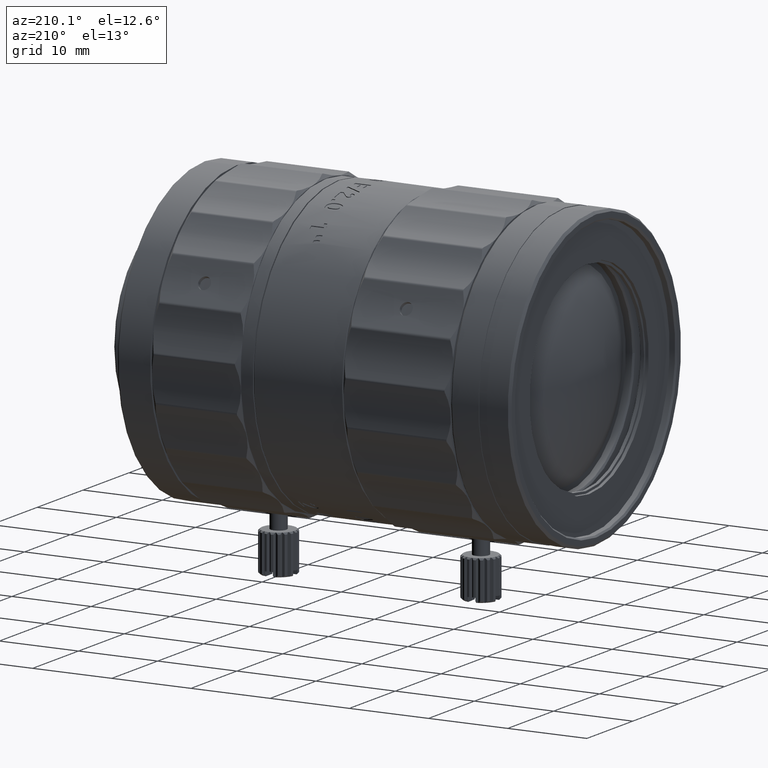
[diagram: clean part render]
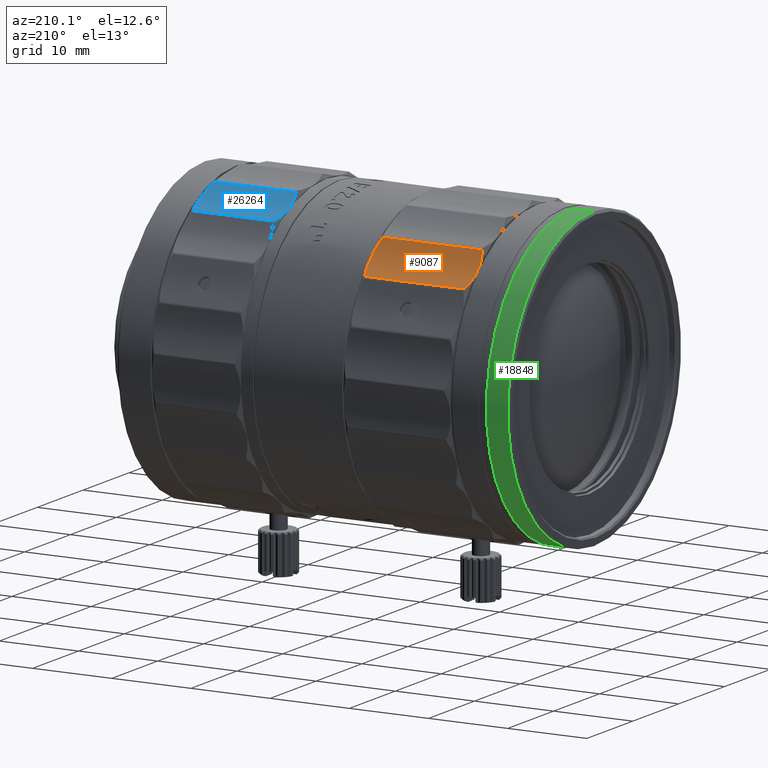
[diagram: same view with three faces highlighted in distinct colors, each labeled with its STEP entity id]
A machine part, auxiliary view with three faces highlighted in distinct colors.
Their STEP definitions:

[orange] entity #9087 — the highlighted cylindrical surface (partial cylindrical patch) has radius 12.5 mm, axis along (1, 0, 0).
#60 = EDGE_CURVE ( 'NONE', #868, #32523, #30309, .T. ) ;
#868 = VERTEX_POINT ( 'NONE', #10416 ) ;
#1176 = VERTEX_POINT ( 'NONE', #35260 ) ;
#1631 = CARTESIAN_POINT ( 'NONE',  ( -11.53163445357601269, 10.89568051414707917, 15.66449177079387844 ) ) ;
#1979 = ORIENTED_EDGE ( 'NONE', *, *, #3864, .F. ) ;
#2832 = EDGE_CURVE ( 'NONE', #9392, #33199, #10520, .T. ) ;
#3864 = EDGE_CURVE ( 'NONE', #9392, #24935, #35029, .T. ) ;
#5397 = FACE_OUTER_BOUND ( 'NONE', #8705, .T. ) ;
#5431 = ORIENTED_EDGE ( 'NONE', *, *, #32544, .F. ) ;
#7262 = AXIS2_PLACEMENT_3D ( 'NONE', #35252, #20626, #17005 ) ;
#7685 = CARTESIAN_POINT ( 'NONE',  ( -24.10923639980315514, 14.80645545024111165, 12.03582291759440182 ) ) ;
#8067 = DIRECTION ( 'NONE',  ( 1.000000000000000000, 0.000000000000000000, 0.000000000000000000 ) ) ;
#8121 = CARTESIAN_POINT ( 'NONE',  ( -24.10923639980437017, 10.89568051414770444, 15.66449177079297783 ) ) ;
#8151 = B_SPLINE_CURVE_WITH_KNOTS ( 'NONE', 3,
 ( #31873, #34369, #34730, #14576 ),
 .UNSPECIFIED., .F., .F.,
 ( 4, 4 ),
 ( 1.295472688045270238E-14, 0.001922655017916426266 ),
 .UNSPECIFIED. ) ;
#8466 = ORIENTED_EDGE ( 'NONE', *, *, #2832, .T. ) ;
#8705 = EDGE_LOOP ( 'NONE', ( #1979, #8466, #10572, #5431, #37404, #29424, #18927, #14153 ) ) ;
#9087 = ADVANCED_FACE ( 'NONE', ( #5397 ), #31083, .F. ) ;
#9392 = VERTEX_POINT ( 'NONE', #32588 ) ;
#9659 = EDGE_CURVE ( 'NONE', #1176, #868, #27371, .T. ) ;
#10416 = CARTESIAN_POINT ( 'NONE',  ( -11.10043542669171224, 13.26851784864276773, 13.10606478315763290 ) ) ;
#10520 = CIRCLE ( 'NONE', #23211, 12.50000000000000000 ) ;
#10572 = ORIENTED_EDGE ( 'NONE', *, *, #25276, .F. ) ;
#10902 = CARTESIAN_POINT ( 'NONE',  ( -24.47071524230154083, 13.76760073791130345, 12.70000782605717404 ) ) ;
#11163 = CARTESIAN_POINT ( 'NONE',  ( -24.32160816121692193, 11.24427671278445651, 15.16332641089076461 ) ) ;
#11396 = CARTESIAN_POINT ( 'NONE',  ( -11.17015561107907118, 13.76760073791565375, 12.70000782605363199 ) ) ;
#12043 = VERTEX_POINT ( 'NONE', #1631 ) ;
#13615 = LINE ( 'NONE', #25009, #35944 ) ;
#13764 = LINE ( 'NONE', #37139, #35516 ) ;
#13816 = CARTESIAN_POINT ( 'NONE',  ( -24.54043542668787836, 12.07785998728260424, 14.21083382943052698 ) ) ;
#14153 = ORIENTED_EDGE ( 'NONE', *, *, #24534, .F. ) ;
#14225 = CARTESIAN_POINT ( 'NONE',  ( -11.31926269216331882, 14.28064082378066502, 12.34599223631151155 ) ) ;
#14495 = CARTESIAN_POINT ( 'NONE',  ( -24.54043542668999933, 21.15738497753000047, 22.80223801917000159 ) ) ;
#14576 = CARTESIAN_POINT ( 'NONE',  ( -11.53163445357601269, 10.89568051414707917, 15.66449177079387844 ) ) ;
#16006 = CARTESIAN_POINT ( 'NONE',  ( -24.10923639980315514, 14.80645545024111165, 12.03582291759440182 ) ) ;
#16952 = DIRECTION ( 'NONE',  ( -1.000000000000000000, -0.000000000000000000, -0.000000000000000000 ) ) ;
#17005 = DIRECTION ( 'NONE',  ( 0.000000000000000000, 0.000000000000000000, -1.000000000000000000 ) ) ;
#17898 = VERTEX_POINT ( 'NONE', #25364 ) ;
#17916 = CARTESIAN_POINT ( 'NONE',  ( -24.54043542668787836, 12.07785998728260424, 14.21083382943052698 ) ) ;
#18927 = ORIENTED_EDGE ( 'NONE', *, *, #9659, .F. ) ;
#19043 = EDGE_CURVE ( 'NONE', #32523, #12043, #8151, .T. ) ;
#19681 = DIRECTION ( 'NONE',  ( 1.000000000000000000, 0.000000000000000000, 0.000000000000000000 ) ) ;
#20626 = DIRECTION ( 'NONE',  ( -1.000000000000000000, -0.000000000000000000, -0.000000000000000000 ) ) ;
#21981 = CARTESIAN_POINT ( 'NONE',  ( -11.10043542669220962, 12.07785998728108723, 14.21083382943212570 ) ) ;
#22148 = CARTESIAN_POINT ( 'NONE',  ( -24.80923542669000170, 21.15738497753000047, 22.80223801917000159 ) ) ;
#23211 = AXIS2_PLACEMENT_3D ( 'NONE', #14495, #16952, #37498 ) ;
#23322 = CARTESIAN_POINT ( 'NONE',  ( -11.53163445357684935, 14.80645545024111165, 12.03582291759440182 ) ) ;
#24534 = EDGE_CURVE ( 'NONE', #24935, #1176, #13764, .T. ) ;
#24935 = VERTEX_POINT ( 'NONE', #16006 ) ;
#25009 = CARTESIAN_POINT ( 'NONE',  ( -24.80923542669000170, 10.89568051414725325, 15.66449177079505262 ) ) ;
#25276 = EDGE_CURVE ( 'NONE', #17898, #33199, #34007, .T. ) ;
#25364 = CARTESIAN_POINT ( 'NONE',  ( -24.10923639980437017, 10.89568051414770444, 15.66449177079297783 ) ) ;
#25397 = CARTESIAN_POINT ( 'NONE',  ( -24.47071524229955486, 11.63564193676204184, 14.67817650731836210 ) ) ;
#26403 = AXIS2_PLACEMENT_3D ( 'NONE', #22148, #19681, #37351 ) ;
#27371 = B_SPLINE_CURVE_WITH_KNOTS ( 'NONE', 3,
 ( #23322, #14225, #11396, #34928 ),
 .UNSPECIFIED., .F., .F.,
 ( 4, 4 ),
 ( 1.205902354214231333E-15, 0.001922655017936495065 ),
 .UNSPECIFIED. ) ;
#27873 = DIRECTION ( 'NONE',  ( -1.000000000000000000, -0.000000000000000000, -0.000000000000000000 ) ) ;
#29424 = ORIENTED_EDGE ( 'NONE', *, *, #60, .F. ) ;
#30309 = CIRCLE ( 'NONE', #7262, 12.50000000000000000 ) ;
#30485 = CARTESIAN_POINT ( 'NONE',  ( -24.54043542668943445, 13.26851784864380157, 13.10606478315679269 ) ) ;
#31083 = CYLINDRICAL_SURFACE ( 'NONE', #26403, 12.50000000000000000 ) ;
#31873 = CARTESIAN_POINT ( 'NONE',  ( -11.10043542669220962, 12.07785998728108723, 14.21083382943212570 ) ) ;
#32523 = VERTEX_POINT ( 'NONE', #21981 ) ;
#32544 = EDGE_CURVE ( 'NONE', #12043, #17898, #13615, .T. ) ;
#32588 = CARTESIAN_POINT ( 'NONE',  ( -24.54043542668943445, 13.26851784864380157, 13.10606478315679269 ) ) ;
#33199 = VERTEX_POINT ( 'NONE', #17916 ) ;
#34007 = B_SPLINE_CURVE_WITH_KNOTS ( 'NONE', 3,
 ( #8121, #11163, #25397, #13816 ),
 .UNSPECIFIED., .F., .F.,
 ( 4, 4 ),
 ( 1.369003497852298842E-16, 0.001922655017930253313 ),
 .UNSPECIFIED. ) ;
#34369 = CARTESIAN_POINT ( 'NONE',  ( -11.17015561107948152, 11.63564193676816139, 14.67817650731189438 ) ) ;
#34730 = CARTESIAN_POINT ( 'NONE',  ( -11.31926269216602243, 11.24427671277962659, 15.16332641089771194 ) ) ;
#34928 = CARTESIAN_POINT ( 'NONE',  ( -11.10043542669171224, 13.26851784864276773, 13.10606478315763290 ) ) ;
#35029 = B_SPLINE_CURVE_WITH_KNOTS ( 'NONE', 3,
 ( #30485, #10902, #36383, #7685 ),
 .UNSPECIFIED., .F., .F.,
 ( 4, 4 ),
 ( 9.081905487405717432E-15, 0.001922655017927580754 ),
 .UNSPECIFIED. ) ;
#35252 = CARTESIAN_POINT ( 'NONE',  ( -11.10043542668999983, 21.15738497753000047, 22.80223801917000159 ) ) ;
#35260 = CARTESIAN_POINT ( 'NONE',  ( -11.53163445357684935, 14.80645545024111165, 12.03582291759440182 ) ) ;
#35516 = VECTOR ( 'NONE', #8067, 1000.000000000000000 ) ;
#35944 = VECTOR ( 'NONE', #27873, 1000.000000000000000 ) ;
#36383 = CARTESIAN_POINT ( 'NONE',  ( -24.32160816121483293, 14.28064082378525690, 12.34599223630880083 ) ) ;
#37139 = CARTESIAN_POINT ( 'NONE',  ( -24.36078843873000110, 14.80645545024170495, 12.03582291759289014 ) ) ;
#37351 = DIRECTION ( 'NONE',  ( 0.000000000000000000, 0.000000000000000000, -1.000000000000000000 ) ) ;
#37404 = ORIENTED_EDGE ( 'NONE', *, *, #19043, .F. ) ;
#37498 = DIRECTION ( 'NONE',  ( 0.000000000000000000, 0.000000000000000000, -1.000000000000000000 ) ) ;

[blue] entity #26264 — the highlighted cylindrical surface (partial cylindrical patch) has radius 14 mm, axis along (1, 0, 0).
#531 = CARTESIAN_POINT ( 'NONE',  ( 1.909564573310058133, 8.410976629473783106, 16.64565925815120195 ) ) ;
#803 = VERTEX_POINT ( 'NONE', #26364 ) ;
#921 = CARTESIAN_POINT ( 'NONE',  ( 12.91926692787327724, 6.397803816475673422, 17.73538670041922316 ) ) ;
#2159 = CARTESIAN_POINT ( 'NONE',  ( 13.10956457330877534, 8.410976629389592674, 16.64565925818913783 ) ) ;
#2238 = B_SPLINE_CURVE_WITH_KNOTS ( 'NONE', 3,
 ( #26939, #23334, #921, #8917 ),
 .UNSPECIFIED., .F., .F.,
 ( 4, 4 ),
 ( 1.992361474134384138E-14, 0.002378321260979482897 ),
 .UNSPECIFIED. ) ;
#3445 = CIRCLE ( 'NONE', #24704, 14.00000000000000000 ) ;
#3614 = FACE_OUTER_BOUND ( 'NONE', #17708, .T. ) ;
#3935 = CARTESIAN_POINT ( 'NONE',  ( 1.909564573310808866, 7.769942302301419801, 16.95436511990200401 ) ) ;
#4036 = B_SPLINE_CURVE_WITH_KNOTS ( 'NONE', 3,
 ( #35307, #6792, #29781, #3935 ),
 .UNSPECIFIED., .F., .F.,
 ( 4, 4 ),
 ( 4.187022029674202294E-16, 0.002378321260949306949 ),
 .UNSPECIFIED. ) ;
#5084 = VERTEX_POINT ( 'NONE', #2159 ) ;
#5455 = EDGE_CURVE ( 'NONE', #30254, #803, #16359, .T. ) ;
#6028 = ORIENTED_EDGE ( 'NONE', *, *, #5455, .F. ) ;
#6125 = CARTESIAN_POINT ( 'NONE',  ( 2.099862218733915320, 9.877118242268778658, 16.05983718210676159 ) ) ;
#6792 = CARTESIAN_POINT ( 'NONE',  ( 2.099862218736026076, 6.397803816471065552, 17.73538670042255561 ) ) ;
#7453 = DIRECTION ( 'NONE',  ( -1.000000000000000000, -0.000000000000000000, -0.000000000000000000 ) ) ;
#7963 = CARTESIAN_POINT ( 'NONE',  ( 1.909564573311000046, 14.16287040311999945, 29.40950342896000436 ) ) ;
#8003 = VERTEX_POINT ( 'NONE', #10981 ) ;
#8917 = CARTESIAN_POINT ( 'NONE',  ( 12.66978593190042446, 5.786900993730538012, 18.19152070241718633 ) ) ;
#9460 = VECTOR ( 'NONE', #7453, 1000.000000000000000 ) ;
#10868 = CARTESIAN_POINT ( 'NONE',  ( 1.685564573309999981, 5.786900993731639353, 18.19152070241819530 ) ) ;
#10981 = CARTESIAN_POINT ( 'NONE',  ( 2.349343214707286798, 10.61462984516172270, 15.86660902108176785 ) ) ;
#11369 = CARTESIAN_POINT ( 'NONE',  ( 12.91926692787522235, 9.877118242261257564, 16.05983718210877242 ) ) ;
#11495 = B_SPLINE_CURVE_WITH_KNOTS ( 'NONE', 3,
 ( #11727, #11369, #35093, #14564 ),
 .UNSPECIFIED., .F., .F.,
 ( 4, 4 ),
 ( 7.061624404620999026E-16, 0.002378321260977993203 ),
 .UNSPECIFIED. ) ;
#11727 = CARTESIAN_POINT ( 'NONE',  ( 12.66978593190154889, 10.61462984516118091, 15.86660902108190996 ) ) ;
#11955 = DIRECTION ( 'NONE',  ( -1.000000000000000000, -0.000000000000000000, -0.000000000000000000 ) ) ;
#13436 = VERTEX_POINT ( 'NONE', #22922 ) ;
#13630 = VERTEX_POINT ( 'NONE', #18920 ) ;
#14424 = CARTESIAN_POINT ( 'NONE',  ( 13.10956457330999925, 14.16287040311999945, 29.40950342896000436 ) ) ;
#14564 = CARTESIAN_POINT ( 'NONE',  ( 13.10956457330877534, 8.410976629389592674, 16.64565925818913783 ) ) ;
#15062 = CARTESIAN_POINT ( 'NONE',  ( 1.945267441357833915, 9.142863609405655012, 16.31584199412269598 ) ) ;
#16359 = LINE ( 'NONE', #10868, #9460 ) ;
#16479 = ORIENTED_EDGE ( 'NONE', *, *, #27087, .F. ) ;
#16570 = EDGE_CURVE ( 'NONE', #16818, #5084, #11495, .T. ) ;
#16818 = VERTEX_POINT ( 'NONE', #33743 ) ;
#17018 = CARTESIAN_POINT ( 'NONE',  ( 1.685564573309999981, 10.61462984516126795, 15.86660902108482496 ) ) ;
#17495 = ORIENTED_EDGE ( 'NONE', *, *, #25082, .F. ) ;
#17708 = EDGE_LOOP ( 'NONE', ( #17495, #35293, #28292, #29441, #16479, #32670, #25216, #6028 ) ) ;
#18079 = DIRECTION ( 'NONE',  ( 0.000000000000000000, 0.000000000000000000, -1.000000000000000000 ) ) ;
#18920 = CARTESIAN_POINT ( 'NONE',  ( 1.909564573310808866, 7.769942302301419801, 16.95436511990200401 ) ) ;
#19281 = VECTOR ( 'NONE', #23655, 1000.000000000000000 ) ;
#22391 = DIRECTION ( 'NONE',  ( 0.000000000000000000, 8.673617379884035472E-16, -1.000000000000000000 ) ) ;
#22629 = EDGE_CURVE ( 'NONE', #36282, #13630, #34906, .T. ) ;
#22828 = AXIS2_PLACEMENT_3D ( 'NONE', #32524, #36148, #18079 ) ;
#22922 = CARTESIAN_POINT ( 'NONE',  ( 13.10956457330179425, 7.769942302347635277, 16.95436511987828254 ) ) ;
#23097 = LINE ( 'NONE', #17018, #19281 ) ;
#23334 = CARTESIAN_POINT ( 'NONE',  ( 13.07386170524735647, 7.055756713728239760, 17.32093970181915310 ) ) ;
#23655 = DIRECTION ( 'NONE',  ( 1.000000000000000000, 0.000000000000000000, 0.000000000000000000 ) ) ;
#24704 = AXIS2_PLACEMENT_3D ( 'NONE', #14424, #11955, #26003 ) ;
#25082 = EDGE_CURVE ( 'NONE', #13436, #30254, #2238, .T. ) ;
#25216 = ORIENTED_EDGE ( 'NONE', *, *, #36422, .F. ) ;
#26003 = DIRECTION ( 'NONE',  ( 0.000000000000000000, -8.673617379884035472E-16, -1.000000000000000000 ) ) ;
#26264 = ADVANCED_FACE ( 'NONE', ( #3614 ), #32902, .F. ) ;
#26364 = CARTESIAN_POINT ( 'NONE',  ( 2.349343214709783023, 5.786900993729887865, 18.19152070241767660 ) ) ;
#26939 = CARTESIAN_POINT ( 'NONE',  ( 13.10956457330179425, 7.769942302347635277, 16.95436511987828254 ) ) ;
#27087 = EDGE_CURVE ( 'NONE', #36282, #8003, #27826, .T. ) ;
#27610 = AXIS2_PLACEMENT_3D ( 'NONE', #7963, #30760, #22391 ) ;
#27826 = B_SPLINE_CURVE_WITH_KNOTS ( 'NONE', 3,
 ( #35028, #15062, #6125, #35406 ),
 .UNSPECIFIED., .F., .F.,
 ( 4, 4 ),
 ( 2.429602234848983258E-14, 0.002378321260981051521 ),
 .UNSPECIFIED. ) ;
#27859 = EDGE_CURVE ( 'NONE', #5084, #13436, #3445, .T. ) ;
#28280 = EDGE_CURVE ( 'NONE', #8003, #16818, #23097, .T. ) ;
#28292 = ORIENTED_EDGE ( 'NONE', *, *, #16570, .F. ) ;
#28551 = CARTESIAN_POINT ( 'NONE',  ( 12.66978593190042446, 5.786900993730538012, 18.19152070241718633 ) ) ;
#29441 = ORIENTED_EDGE ( 'NONE', *, *, #28280, .F. ) ;
#29781 = CARTESIAN_POINT ( 'NONE',  ( 1.945267441358843552, 7.055756713730006346, 17.32093970181834308 ) ) ;
#30254 = VERTEX_POINT ( 'NONE', #28551 ) ;
#30760 = DIRECTION ( 'NONE',  ( -1.000000000000000000, -0.000000000000000000, -0.000000000000000000 ) ) ;
#32524 = CARTESIAN_POINT ( 'NONE',  ( 1.685564573309999981, 14.16287040311999945, 29.40950342896000436 ) ) ;
#32670 = ORIENTED_EDGE ( 'NONE', *, *, #22629, .T. ) ;
#32902 = CYLINDRICAL_SURFACE ( 'NONE', #22828, 14.00000000000000000 ) ;
#33743 = CARTESIAN_POINT ( 'NONE',  ( 12.66978593190154889, 10.61462984516118091, 15.86660902108190996 ) ) ;
#34906 = CIRCLE ( 'NONE', #27610, 14.00000000000000000 ) ;
#35028 = CARTESIAN_POINT ( 'NONE',  ( 1.909564573310058133, 8.410976629473783106, 16.64565925815120195 ) ) ;
#35093 = CARTESIAN_POINT ( 'NONE',  ( 13.07386170524710600, 9.142863609412907877, 16.31584199411949854 ) ) ;
#35293 = ORIENTED_EDGE ( 'NONE', *, *, #27859, .F. ) ;
#35307 = CARTESIAN_POINT ( 'NONE',  ( 2.349343214709783023, 5.786900993729887865, 18.19152070241767660 ) ) ;
#35406 = CARTESIAN_POINT ( 'NONE',  ( 2.349343214707286798, 10.61462984516172270, 15.86660902108176785 ) ) ;
#36148 = DIRECTION ( 'NONE',  ( 1.000000000000000000, 0.000000000000000000, 0.000000000000000000 ) ) ;
#36282 = VERTEX_POINT ( 'NONE', #531 ) ;
#36422 = EDGE_CURVE ( 'NONE', #803, #13630, #4036, .T. ) ;

[green] entity #18848 — the highlighted cylindrical surface (partial cylindrical patch) has radius 18.75 mm, axis along (1, 0, 0).
#469 = AXIS2_PLACEMENT_3D ( 'NONE', #9483, #21065, #6606 ) ;
#1067 = EDGE_LOOP ( 'NONE', ( #20322, #2826, #16349, #9543 ) ) ;
#2826 = ORIENTED_EDGE ( 'NONE', *, *, #13056, .T. ) ;
#4713 = VERTEX_POINT ( 'NONE', #34515 ) ;
#4781 = CARTESIAN_POINT ( 'NONE',  ( -31.97431805405999938, 2.296212748402511890E-15, 18.75000000001000089 ) ) ;
#5593 = CARTESIAN_POINT ( 'NONE',  ( -31.90048391367999869, 0.000000000000000000, -18.75000000002367173 ) ) ;
#6606 = DIRECTION ( 'NONE',  ( 0.000000000000000000, 0.000000000000000000, -1.000000000000000000 ) ) ;
#7212 = DIRECTION ( 'NONE',  ( 0.000000000000000000, 0.000000000000000000, -1.000000000000000000 ) ) ;
#7351 = VERTEX_POINT ( 'NONE', #31259 ) ;
#9483 = CARTESIAN_POINT ( 'NONE',  ( -31.90048391367999869, 0.000000000000000000, 0.000000000000000000 ) ) ;
#9543 = ORIENTED_EDGE ( 'NONE', *, *, #11483, .F. ) ;
#9569 = VECTOR ( 'NONE', #32943, 1000.000000000000000 ) ;
#9982 = VERTEX_POINT ( 'NONE', #29872 ) ;
#11483 = EDGE_CURVE ( 'NONE', #23021, #9982, #32564, .T. ) ;
#13056 = EDGE_CURVE ( 'NONE', #7351, #4713, #27415, .T. ) ;
#13647 = CYLINDRICAL_SURFACE ( 'NONE', #37133, 18.75000000001000089 ) ;
#14686 = EDGE_CURVE ( 'NONE', #9982, #4713, #22343, .T. ) ;
#15453 = CARTESIAN_POINT ( 'NONE',  ( -31.97431805405999938, 0.000000000000000000, -18.75000000001000089 ) ) ;
#15928 = CARTESIAN_POINT ( 'NONE',  ( -29.20048391366999851, 0.000000000000000000, 0.000000000000000000 ) ) ;
#16349 = ORIENTED_EDGE ( 'NONE', *, *, #14686, .F. ) ;
#18055 = CIRCLE ( 'NONE', #469, 18.75000000001000089 ) ;
#18805 = CARTESIAN_POINT ( 'NONE',  ( -31.97431805405999938, 0.000000000000000000, 0.000000000000000000 ) ) ;
#18848 = ADVANCED_FACE ( 'NONE', ( #24859 ), #13647, .T. ) ;
#20322 = ORIENTED_EDGE ( 'NONE', *, *, #28065, .T. ) ;
#21065 = DIRECTION ( 'NONE',  ( 1.000000000000000000, 0.000000000000000000, 0.000000000000000000 ) ) ;
#21818 = DIRECTION ( 'NONE',  ( 1.000000000000000000, 0.000000000000000000, 0.000000000000000000 ) ) ;
#22343 = CIRCLE ( 'NONE', #33302, 18.75000000001000089 ) ;
#23021 = VERTEX_POINT ( 'NONE', #5593 ) ;
#24859 = FACE_OUTER_BOUND ( 'NONE', #1067, .T. ) ;
#25890 = VECTOR ( 'NONE', #30266, 1000.000000000000000 ) ;
#27415 = LINE ( 'NONE', #4781, #25890 ) ;
#28065 = EDGE_CURVE ( 'NONE', #23021, #7351, #18055, .T. ) ;
#29872 = CARTESIAN_POINT ( 'NONE',  ( -29.20048391366999851, 0.000000000000000000, -18.75000000001000089 ) ) ;
#30266 = DIRECTION ( 'NONE',  ( 1.000000000000000000, 0.000000000000000000, 0.000000000000000000 ) ) ;
#30557 = DIRECTION ( 'NONE',  ( 0.000000000000000000, 0.000000000000000000, -1.000000000000000000 ) ) ;
#31259 = CARTESIAN_POINT ( 'NONE',  ( -31.90048391367999869, 2.296212748404186247E-15, 18.75000000002367173 ) ) ;
#32564 = LINE ( 'NONE', #15453, #9569 ) ;
#32943 = DIRECTION ( 'NONE',  ( 1.000000000000000000, 0.000000000000000000, 0.000000000000000000 ) ) ;
#33302 = AXIS2_PLACEMENT_3D ( 'NONE', #15928, #21818, #30557 ) ;
#34515 = CARTESIAN_POINT ( 'NONE',  ( -29.20048391366999851, 2.296212748402511890E-15, 18.75000000001000089 ) ) ;
#36465 = DIRECTION ( 'NONE',  ( 1.000000000000000000, 0.000000000000000000, 0.000000000000000000 ) ) ;
#37133 = AXIS2_PLACEMENT_3D ( 'NONE', #18805, #36465, #7212 ) ;